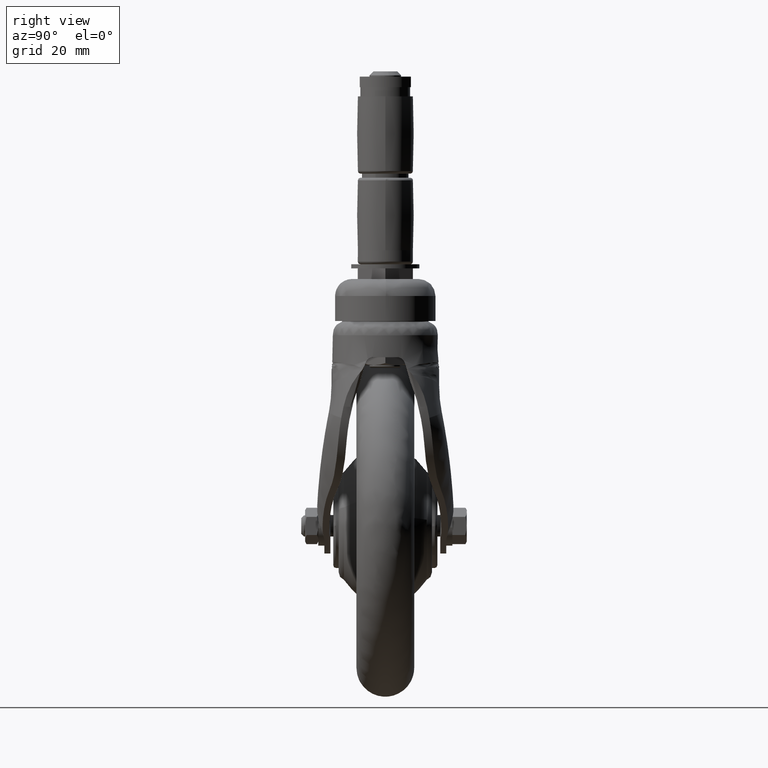
[diagram: clean part render]
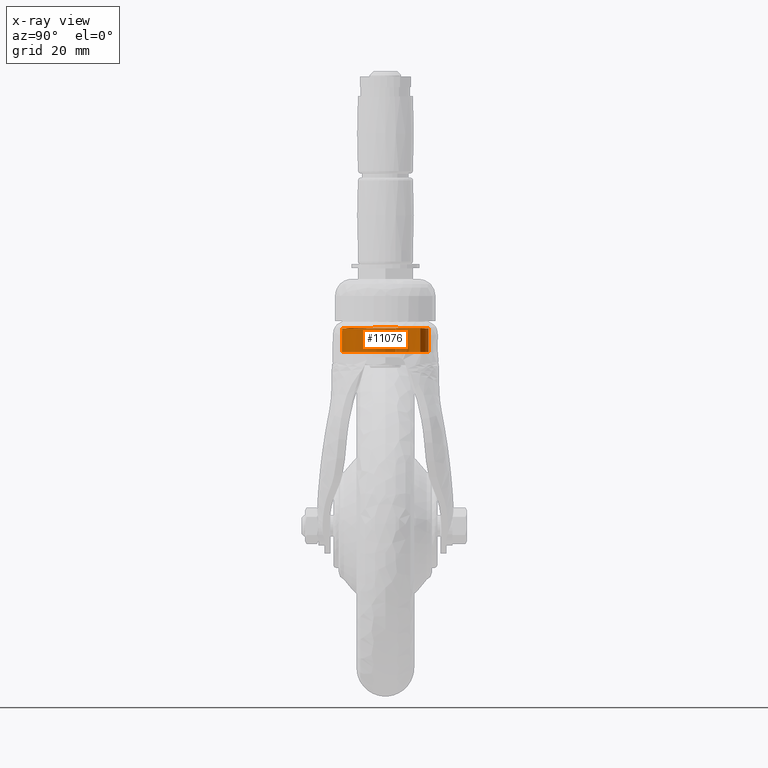
[diagram: x-ray — body ghosted, one internal face saturated and labeled with its STEP entity id]
A machine part, right view, then the same camera in x-ray: the body is ghosted and one INTERNAL B-rep face — a face not visible from any outside direction — is saturated and labeled: STEP entity #11076.
In plain terms, the highlighted face is a freeform B-spline surface patch.
Its self-contained STEP definition (entity closure, byte-faithful):
#10758=CARTESIAN_POINT('',(61.002456283382713,4.021367043484758,75.587504057680178));
#10759=CARTESIAN_POINT('',(62.907263208429306,-3.558540290696009,75.587504057680178));
#10760=CARTESIAN_POINT('',(58.249062442713033,-9.834243457891956,75.587504057680178));
#10761=CARTESIAN_POINT('',(48.414818984821075,-23.083305900604994,75.587504057680178));
#10762=CARTESIAN_POINT('',(35.165756542108042,-13.249062442713040,75.587504057680178));
#10763=CARTESIAN_POINT('',(21.916694099395016,-3.414818984821078,75.587504057680178));
#10764=CARTESIAN_POINT('',(31.750937557286971,9.834243457891956,75.587504057680178));
#10765=CARTESIAN_POINT('',(41.585181015178932,23.083305900604994,75.587504057680178));
#10766=CARTESIAN_POINT('',(54.834243457891958,13.249062442713040,75.587504057680178));
#10767=CARTESIAN_POINT('',(61.002456283382713,4.021367043484758,65.965312398551887));
#10768=CARTESIAN_POINT('',(62.907263208429306,-3.558540290696009,65.965312398551916));
#10769=CARTESIAN_POINT('',(58.249062442713033,-9.834243457891956,65.965312398551902));
#10770=CARTESIAN_POINT('',(48.414818984821075,-23.083305900604994,65.965312398551916));
#10771=CARTESIAN_POINT('',(35.165756542108042,-13.249062442713040,65.965312398551902));
#10772=CARTESIAN_POINT('',(21.916694099395016,-3.414818984821078,65.965312398551916));
#10773=CARTESIAN_POINT('',(31.750937557286971,9.834243457891956,65.965312398551902));
#10774=CARTESIAN_POINT('',(41.585181015178932,23.083305900604994,65.965312398551916));
#10775=CARTESIAN_POINT('',(54.834243457891958,13.249062442713040,65.965312398551902));
#10783=(BOUNDED_SURFACE()B_SPLINE_SURFACE(2,1,((#10758,#10767),(#10759,#10768),(#10760,#10769),(#10761,#10770),(#10762,#10771),(#10763,#10772),(#10764,#10773),(#10765,#10774),(#10766,#10775)),.UNSPECIFIED.,.F.,.F.,.U.)B_SPLINE_SURFACE_WITH_KNOTS((3,2,2,2,3),(2,2),(0.0,15.309333265309590,42.647428381933857,69.985523498558138,97.323618615182397),(0.0,9.622191659128287),.UNSPECIFIED.)GEOMETRIC_REPRESENTATION_ITEM()RATIONAL_B_SPLINE_SURFACE(((0.855662221768731,0.855662221768731),(0.835979797464467,0.835979797464467),(1.0,1.0),(0.707106781186548,0.707106781186548),(1.0,1.0),(0.707106781186548,0.707106781186548),(1.0,1.0),(0.707106781186548,0.707106781186548),(1.0,1.0)))REPRESENTATION_ITEM('')SURFACE());
#10784=CARTESIAN_POINT('',(61.500000000000000,0.0,66.199999999999989));
#10785=VERTEX_POINT('',#10784);
#10786=CARTESIAN_POINT('',(61.002456283335050,4.021367043674417,66.199999999999989));
#10787=VERTEX_POINT('',#10786);
#10788=CARTESIAN_POINT('',(61.500000000000000,0.0,66.199999999999989));
#10789=CARTESIAN_POINT('',(61.500000000000007,2.041462825007332,66.199999999999989));
#10790=CARTESIAN_POINT('',(61.002456283335057,4.021367043674418,66.199999999999989));
#10798=(BOUNDED_CURVE()B_SPLINE_CURVE(2,(#10788,#10789,#10790),.UNSPECIFIED.,.F.,.U.)B_SPLINE_CURVE_WITH_KNOTS((3,3),(0.0,0.041610900598623),.UNSPECIFIED.)CURVE()GEOMETRIC_REPRESENTATION_ITEM()RATIONAL_B_SPLINE_CURVE((1.0,0.951249797543770,0.918727913716092))REPRESENTATION_ITEM(''));
#10799=EDGE_CURVE('',#10785,#10787,#10798,.T.);
#10800=ORIENTED_EDGE('',*,*,#10799,.T.);
#10801=CARTESIAN_POINT('',(61.002416216861683,4.021349776961525,75.050108710114387));
#10802=VERTEX_POINT('',#10801);
#10803=CARTESIAN_POINT('',(61.002416216861683,4.021349776961525,75.050108710114387));
#10804=CARTESIAN_POINT('',(61.002456283335050,4.021367043674417,66.199999999999989));
#10805=QUASI_UNIFORM_CURVE('',1,(#10803,#10804),.UNSPECIFIED.,.F.,.U.);
#10806=EDGE_CURVE('',#10802,#10787,#10805,.T.);
#10807=ORIENTED_EDGE('',*,*,#10806,.F.);
#10808=CARTESIAN_POINT('',(50.071148555183420,-15.701383673722200,75.186873105777181));
#10809=VERTEX_POINT('',#10808);
#10810=CARTESIAN_POINT('',(61.002416216861683,4.021349776961525,75.050108710114387));
#10811=CARTESIAN_POINT('',(61.044515756381863,3.853817918214133,75.049430920742907));
#10812=CARTESIAN_POINT('',(61.083913804949241,3.685902906386505,75.048801995117458));
#10813=CARTESIAN_POINT('',(61.235492137583670,2.991224065684841,75.046429495899417));
#10814=CARTESIAN_POINT('',(61.324212996237563,2.461132848421926,75.045176593537434));
#10815=CARTESIAN_POINT('',(61.449766430510941,1.393590870206347,75.043717623391842));
#10816=CARTESIAN_POINT('',(61.486600753809157,0.856140356134697,75.043512020257438));
#10817=CARTESIAN_POINT('',(61.502094606792063,0.044326412716135,75.043591933249417));
#10818=CARTESIAN_POINT('',(61.500614403908912,-0.227431022610041,75.043676721026216));
#10819=CARTESIAN_POINT('',(61.484112125384598,-0.771990271989037,75.043865791611623));
#10820=CARTESIAN_POINT('',(61.469157040193068,-1.042935339335416,75.043983867786821));
#10821=CARTESIAN_POINT('',(61.404599887549047,-1.851850023465789,75.044563756473934));
#10822=CARTESIAN_POINT('',(61.335352717703792,-2.385908393827824,75.045266569133744));
#10823=CARTESIAN_POINT('',(61.145478789756602,-3.443794445078046,75.047746262993343));
#10824=CARTESIAN_POINT('',(61.024850665054473,-3.967621855414800,75.049522620437884));
#10825=CARTESIAN_POINT('',(60.805031553859607,-4.745621927645990,75.052957824422037));
#10826=CARTESIAN_POINT('',(60.725267574904123,-5.003662841648140,75.054227592112355));
#10827=CARTESIAN_POINT('',(60.595735151203449,-5.388755788796753,75.056280919909995));
#10828=CARTESIAN_POINT('',(60.550909162193911,-5.516791880894299,75.056989902642201));
#10829=CARTESIAN_POINT('',(60.457925513752613,-5.772200748495925,75.058447633476632));
#10830=CARTESIAN_POINT('',(60.409696453154822,-5.899750691170461,75.059197464292154));
#10831=CARTESIAN_POINT('',(60.161224120218812,-6.533051723962505,75.063000941463841));
#10832=CARTESIAN_POINT('',(59.939026485527492,-7.025849569992776,75.066106101924234));
#10833=CARTESIAN_POINT('',(59.449305257441807,-7.984653566457824,75.072484978210070));
#10834=CARTESIAN_POINT('',(59.181777940549857,-8.450656604859480,75.075872671943472));
#10835=CARTESIAN_POINT('',(58.601561539792087,-9.355962716366427,75.083481654170527));
#10836=CARTESIAN_POINT('',(58.288874833530798,-9.795267197302522,75.087702626885289));
#10837=CARTESIAN_POINT('',(57.869075396355463,-10.327287928897590,75.093476465446528));
#10838=CARTESIAN_POINT('',(57.783665083860740,-10.432834597703071,75.094654960930754));
#10839=CARTESIAN_POINT('',(57.609911712849438,-10.642194169690340,75.097054180714153));
#10840=CARTESIAN_POINT('',(57.521522879631220,-10.746051595710259,75.098275528257489));
#10841=CARTESIAN_POINT('',(57.253423831454370,-11.053291492963490,75.101971262073377));
#10842=CARTESIAN_POINT('',(57.070316703516660,-11.252920033954069,75.104484485460162));
#10843=CARTESIAN_POINT('',(56.508120675577587,-11.836508697578580,75.112049858364543));
#10844=CARTESIAN_POINT('',(56.116186904508922,-12.205208689082101,75.117028449743117));
#10845=CARTESIAN_POINT('',(55.298600826981541,-12.902549683548781,75.126809920275505));
#10846=CARTESIAN_POINT('',(54.872949003090312,-13.231189533802080,75.131730605231454));
#10847=CARTESIAN_POINT('',(54.208869224241226,-13.693725571804380,75.139488136466838));
#10848=CARTESIAN_POINT('',(53.983234719870367,-13.842824685386510,75.142133162559190));
#10849=CARTESIAN_POINT('',(53.523268672636782,-14.130687893973340,75.147554246125949));
#10850=CARTESIAN_POINT('',(53.288421891323331,-14.269720625813200,75.150336453484599));
#10851=CARTESIAN_POINT('',(52.576337351830887,-14.667789593329410,75.158786411544469));
#10852=CARTESIAN_POINT('',(52.090594248354222,-14.908598822597909,75.164580971145170));
#10853=CARTESIAN_POINT('',(51.097315115795553,-15.341640360417900,75.176014204510963));
#10854=CARTESIAN_POINT('',(50.589779522229080,-15.533873425407419,75.181549429766491));
#10855=CARTESIAN_POINT('',(50.071148555183420,-15.701383673722200,75.186873105777181));
#10856=B_SPLINE_CURVE_WITH_KNOTS('',3,(#10810,#10811,#10812,#10813,#10814,#10815,#10816,#10817,#10818,#10819,#10820,#10821,#10822,#10823,#10824,#10825,#10826,#10827,#10828,#10829,#10830,#10831,#10832,#10833,#10834,#10835,#10836,#10837,#10838,#10839,#10840,#10841,#10842,#10843,#10844,#10845,#10846,#10847,#10848,#10849,#10850,#10851,#10852,#10853,#10854,#10855),.UNSPECIFIED.,.F.,.U.,(4,2,2,2,2,2,2,2,2,2,2,2,2,2,2,2,2,2,2,2,2,2,4),(0.760629403587485,0.765625000000006,0.781250000000006,0.796875000000005,0.804687500000005,0.812500000000005,0.828125000000004,0.843750000000004,0.851562500000004,0.855468750000004,0.859375000000004,0.875000000000003,0.890625000000003,0.906250000000002,0.910156250000002,0.914062500000002,0.921875000000002,0.937500000000001,0.953125000000001,0.960937500000001,0.968750000000001,0.984375000000000,1.0),.UNSPECIFIED.);
#10857=EDGE_CURVE('',#10802,#10809,#10856,.T.);
#10858=ORIENTED_EDGE('',*,*,#10857,.T.);
#10859=CARTESIAN_POINT('',(28.604281801543880,1.852080548127024,75.357613298993712));
#10860=VERTEX_POINT('',#10859);
#10861=CARTESIAN_POINT('',(50.071148555183420,-15.701383673722200,75.186873105777181));
#10862=CARTESIAN_POINT('',(49.552569311654452,-15.868871662147690,75.192196097492328));
#10863=CARTESIAN_POINT('',(49.030023746156452,-16.009342891809460,75.197353717315067));
#10864=CARTESIAN_POINT('',(47.977223534605123,-16.238114132706560,75.207786156625161));
#10865=CARTESIAN_POINT('',(47.446967352053250,-16.326403838294851,75.213058532220302));
#10866=CARTESIAN_POINT('',(46.378838744230507,-16.451076430788369,75.223708626621672));
#10867=CARTESIAN_POINT('',(45.840966642435973,-16.487461575382980,75.229085552379843));
#10868=CARTESIAN_POINT('',(45.163752614621103,-16.499743540657200,75.235613879239310));
#10869=CARTESIAN_POINT('',(45.028065540121652,-16.500536114978772,75.236908932772280));
#10870=CARTESIAN_POINT('',(44.756197631108463,-16.498758737920340,75.239467463001830));
#10871=CARTESIAN_POINT('',(44.619839211391202,-16.496180804209491,75.240732522882212));
#10872=CARTESIAN_POINT('',(44.211963354365231,-16.483416199538620,75.244444853390519));
#10873=CARTESIAN_POINT('',(43.941315318408009,-16.468219015568710,75.246809271838515));
#10874=CARTESIAN_POINT('',(43.133106129235259,-16.402954316457379,75.253717505725220));
#10875=CARTESIAN_POINT('',(42.599271172099392,-16.333260220397701,75.258090754818582));
#10876=CARTESIAN_POINT('',(41.541378476711081,-16.142392070886181,75.266807528079710));
#10877=CARTESIAN_POINT('',(41.017320843858059,-16.021217397209679,75.271149578481825));
#10878=CARTESIAN_POINT('',(40.238653697038941,-15.800390982921240,75.277649676424360));
#10879=CARTESIAN_POINT('',(39.980336695550790,-15.720259913556291,75.279811089012767));
#10880=CARTESIAN_POINT('',(39.594750506266280,-15.590114243695901,75.283018729791721));
#10881=CARTESIAN_POINT('',(39.466536809692563,-15.545073389869581,75.284082003071177));
#10882=CARTESIAN_POINT('',(39.210746539939748,-15.451636297510939,75.286189882331186));
#10883=CARTESIAN_POINT('',(39.083392468819717,-15.403317124876880,75.287232623646958));
#10884=CARTESIAN_POINT('',(38.451530983784373,-15.154624064067860,75.292352586981181));
#10885=CARTESIAN_POINT('',(37.959555588737281,-14.932230692131670,75.296086220009457));
#10886=CARTESIAN_POINT('',(37.001852965696273,-14.441918372928180,75.302882460944730));
#10887=CARTESIAN_POINT('',(36.536128176607413,-14.173996401521730,75.306040772431032));
#10888=CARTESIAN_POINT('',(35.630926060189310,-13.592635637384390,75.312284403350645));
#10889=CARTESIAN_POINT('',(35.191446904865153,-13.279200008497700,75.315369238834492));
#10890=CARTESIAN_POINT('',(34.552483456248737,-12.773921183212639,75.319952386162043));
#10891=CARTESIAN_POINT('',(34.342546090890522,-12.599295633911520,75.321472132075073));
#10892=CARTESIAN_POINT('',(33.933982527996733,-12.242010681277019,75.324424240441928));
#10893=CARTESIAN_POINT('',(33.734824573621253,-12.058960933332109,75.325860306743607));
#10894=CARTESIAN_POINT('',(33.152456903294357,-11.496817605016069,75.329968035310102));
#10895=CARTESIAN_POINT('',(32.784317539597261,-11.104760312558730,75.332357309474531));
#10896=CARTESIAN_POINT('',(32.087736577893651,-10.286497926259470,75.336523704165884));
#10897=CARTESIAN_POINT('',(31.759294936143050,-9.860293339164386,75.338385400110141));
#10898=CARTESIAN_POINT('',(31.296883557885529,-9.194966933929594,75.341124867662785));
#10899=CARTESIAN_POINT('',(31.147797219893370,-8.968847172174252,75.342026304441220));
#10900=CARTESIAN_POINT('',(30.931888925716748,-8.623026396208759,75.343369691474493));
#10901=CARTESIAN_POINT('',(30.861110904326789,-8.506479567531011,75.343816463981554));
#10902=CARTESIAN_POINT('',(30.722741908013219,-8.272138621685617,75.344702210894894));
#10903=CARTESIAN_POINT('',(30.655145023152610,-8.154346942710337,75.345141195987466));
#10904=CARTESIAN_POINT('',(30.325011428189509,-7.562316639147823,75.347311429533192));
#10905=CARTESIAN_POINT('',(30.085968800028219,-7.078885172560121,75.348981840821153));
#10906=CARTESIAN_POINT('',(29.656745257802690,-6.092902627676760,75.351838963658480));
#10907=CARTESIAN_POINT('',(29.466566910872970,-5.590350324373718,75.352931762087493));
#10908=CARTESIAN_POINT('',(29.135239086208209,-4.566060530927552,75.354560780066706));
#10909=CARTESIAN_POINT('',(28.994085403107409,-4.044324862924958,75.355172232230885));
#10910=CARTESIAN_POINT('',(28.849289851935200,-3.379772603789204,75.355894440205759));
#10911=CARTESIAN_POINT('',(28.821906228520060,-3.246160328366563,75.356035995039093));
#10912=CARTESIAN_POINT('',(28.770617999029540,-2.979166327566055,75.356313456513746));
#10913=CARTESIAN_POINT('',(28.698783393888949,-2.578493771882136,75.356721409036624));
#10914=CARTESIAN_POINT('',(28.642070222053281,-2.177282671764317,75.357108972078805));
#10915=CARTESIAN_POINT('',(28.548494129060661,-1.374153506847260,75.357836194745303));
#10916=CARTESIAN_POINT('',(28.512530365432280,-0.837793109866663,75.358267868419702));
#10917=CARTESIAN_POINT('',(28.492956850763900,0.236792352867076,75.358649600164043));
#10918=CARTESIAN_POINT('',(28.509345803003530,0.775017396048501,75.358501986651845));
#10919=CARTESIAN_POINT('',(28.566744756871671,1.493383256822739,75.357950513896924));
#10920=CARTESIAN_POINT('',(28.584015867660209,1.672678571270227,75.357789834779751));
#10921=CARTESIAN_POINT('',(28.604281801543880,1.852080548127024,75.357613298993712));
#10922=B_SPLINE_CURVE_WITH_KNOTS('',3,(#10861,#10862,#10863,#10864,#10865,#10866,#10867,#10868,#10869,#10870,#10871,#10872,#10873,#10874,#10875,#10876,#10877,#10878,#10879,#10880,#10881,#10882,#10883,#10884,#10885,#10886,#10887,#10888,#10889,#10890,#10891,#10892,#10893,#10894,#10895,#10896,#10897,#10898,#10899,#10900,#10901,#10902,#10903,#10904,#10905,#10906,#10907,#10908,#10909,#10910,#10911,#10912,#10913,#10914,#10915,#10916,#10917,#10918,#10919,#10920,#10921),.UNSPECIFIED.,.F.,.U.,(4,2,2,2,2,2,2,2,2,2,2,2,2,2,2,2,2,2,2,2,2,2,2,2,2,2,1,2,2,2,4),(0.000001557555696,0.015625000000001,0.031250000000002,0.046875000000002,0.050781250000002,0.054687500000003,0.062500000000003,0.078125000000003,0.093750000000004,0.101562500000004,0.105468750000004,0.109375000000005,0.125000000000005,0.140625000000005,0.156250000000005,0.164062500000005,0.171875000000005,0.187500000000005,0.203125000000005,0.210937500000006,0.214843750000006,0.218750000000006,0.234375000000006,0.250000000000006,0.265625000000006,0.269531250000006,0.273437500000006,0.281250000000006,0.296875000000007,0.312500000000007,0.317692825824048),.UNSPECIFIED.);
#10923=EDGE_CURVE('',#10809,#10860,#10922,.T.);
#10924=ORIENTED_EDGE('',*,*,#10923,.T.);
#10925=CARTESIAN_POINT('',(39.924506904894258,15.699979931246220,75.280540674042356));
#10926=VERTEX_POINT('',#10925);
#10927=CARTESIAN_POINT('',(28.604281801543880,1.852080548127024,75.357613298993712));
#10928=CARTESIAN_POINT('',(28.614505505086829,1.942585173007317,75.357524320510507));
#10929=CARTESIAN_POINT('',(28.625491389753378,2.033116943428999,75.357431306613975));
#10930=CARTESIAN_POINT('',(28.654770473511501,2.258710590853589,75.357191867838793));
#10931=CARTESIAN_POINT('',(28.673975519437128,2.393560264398642,75.357041739238554));
#10932=CARTESIAN_POINT('',(28.715586779917832,2.661972108918964,75.356733292365334));
#10933=CARTESIAN_POINT('',(28.738010797226320,2.795674269429523,75.356574825158447));
#10934=CARTESIAN_POINT('',(28.858141560645318,3.461691569521176,75.355768543257938));
#10935=CARTESIAN_POINT('',(28.979821397297169,3.986544573609098,75.355093215391932));
#10936=CARTESIAN_POINT('',(29.273223154076081,5.020673826498609,75.353634871837471));
#10937=CARTESIAN_POINT('',(29.444946893291689,5.529949509385973,75.352852030442122));
#10938=CARTESIAN_POINT('',(29.740327113428240,6.282098035890482,75.351288548954969));
#10939=CARTESIAN_POINT('',(29.845097414967992,6.530849902297872,75.350695340003455));
#10940=CARTESIAN_POINT('',(30.067440533748229,7.024368242397642,75.349306171568571));
#10941=CARTESIAN_POINT('',(30.185100962760259,7.269306218102433,75.348521837415234));
#10942=CARTESIAN_POINT('',(30.557162447014360,7.996945190316184,75.346005294672267));
#10943=CARTESIAN_POINT('',(30.827108857487541,8.465757232847397,75.344146247470135));
#10944=CARTESIAN_POINT('',(31.409314221656839,9.371935036217737,75.340368329396043));
#10945=CARTESIAN_POINT('',(31.721577377275398,9.809297672471852,75.338449077509949));
#10946=CARTESIAN_POINT('',(32.388186856599830,10.652746792362430,75.334478376512934));
#10947=CARTESIAN_POINT('',(32.742531416345763,11.058834592813760,75.332428180813267));
#10948=CARTESIAN_POINT('',(33.212378733016507,11.546438624027189,75.329497519760423));
#10949=CARTESIAN_POINT('',(33.307697136786580,11.642956828570821,75.328891979966926));
#10950=CARTESIAN_POINT('',(33.501060079365743,11.833966982900771,75.327630697131241));
#10951=CARTESIAN_POINT('',(33.599245303297977,11.928588922021410,75.326972244650833));
#10952=CARTESIAN_POINT('',(33.896656411508388,12.208183746887400,75.324931250566053));
#10953=CARTESIAN_POINT('',(34.098746209834403,12.388933315781420,75.323487499769996));
#10954=CARTESIAN_POINT('',(34.716234452784967,12.914580075713040,75.319014569322334));
#10955=CARTESIAN_POINT('',(35.569415941528163,13.571249373916091,75.312695861837142));
#10956=CARTESIAN_POINT('',(36.481248407992979,14.141131871333060,75.306247746002470));
#10957=CARTESIAN_POINT('',(37.187350652393377,14.535652084074069,75.301297800657764));
#10958=CARTESIAN_POINT('',(37.426429180967588,14.661667279968571,75.299625762466761));
#10959=CARTESIAN_POINT('',(37.790704290112572,14.842318239690171,75.297047352964952));
#10960=CARTESIAN_POINT('',(37.913072655540070,14.901139262835891,75.296175945874708));
#10961=CARTESIAN_POINT('',(38.159716690283368,15.015958738918849,75.294400372005171));
#10962=CARTESIAN_POINT('',(38.284063135373280,15.071982571481410,75.293495642544215));
#10963=CARTESIAN_POINT('',(38.907132221422430,15.343486940361640,75.288889349573026));
#10964=CARTESIAN_POINT('',(39.412478784195002,15.534451282026410,75.284822580244580));
#10965=CARTESIAN_POINT('',(39.924506904894258,15.699979931246220,75.280540674042356));
#10966=B_SPLINE_CURVE_WITH_KNOTS('',3,(#10927,#10928,#10929,#10930,#10931,#10932,#10933,#10934,#10935,#10936,#10937,#10938,#10939,#10940,#10941,#10942,#10943,#10944,#10945,#10946,#10947,#10948,#10949,#10950,#10951,#10952,#10953,#10954,#10955,#10956,#10957,#10958,#10959,#10960,#10961,#10962,#10963,#10964,#10965),.UNSPECIFIED.,.F.,.U.,(4,2,2,2,2,2,2,2,2,2,2,2,2,2,1,2,2,2,2,4),(0.317692825824048,0.320312500000007,0.324218750000007,0.328125000000007,0.343750000000007,0.359375000000007,0.367187500000007,0.375000000000008,0.390625000000008,0.406250000000008,0.421875000000008,0.425781250000008,0.429687500000008,0.437500000000008,0.453125000000008,0.468750000000009,0.476562500000009,0.480468750000009,0.484375000000009,0.500000000000009),.UNSPECIFIED.);
#10967=EDGE_CURVE('',#10860,#10926,#10966,.T.);
#10968=ORIENTED_EDGE('',*,*,#10967,.T.);
#10969=CARTESIAN_POINT('',(54.834238692481378,13.249049063386160,75.131954783755901));
#10970=VERTEX_POINT('',#10969);
#10971=CARTESIAN_POINT('',(39.924506904894258,15.699979931246220,75.280540674042356));
#10972=CARTESIAN_POINT('',(40.436535468360219,15.865508904483120,75.276258441788585));
#10973=CARTESIAN_POINT('',(40.955246916761553,16.005598174219610,75.271810140346417));
#10974=CARTESIAN_POINT('',(42.006010901650242,16.235000734304379,75.262883155367305));
#10975=CARTESIAN_POINT('',(42.538062660091462,16.324317037451429,75.258406113144346));
#10976=CARTESIAN_POINT('',(43.211691471722517,16.403365827377719,75.252736183230041));
#10977=CARTESIAN_POINT('',(43.346846433469587,16.417541941113370,75.251597476092442));
#10978=CARTESIAN_POINT('',(43.618024543811742,16.442589446525279,75.249304856552314));
#10979=CARTESIAN_POINT('',(43.753789472273361,16.453433244132100,75.248153106922814));
#10980=CARTESIAN_POINT('',(44.160267020446902,16.480858139709401,75.244682041262777));
#10981=CARTESIAN_POINT('',(44.430707470829368,16.492387668439470,75.242343090788324));
#10982=CARTESIAN_POINT('',(45.240423564972680,16.507082312138881,75.235135960795674));
#10983=CARTESIAN_POINT('',(45.778096714375422,16.490400498886569,75.229970878373734));
#10984=CARTESIAN_POINT('',(46.849233495997410,16.404849100483620,75.219302837715873));
#10985=CARTESIAN_POINT('',(47.382697585001530,16.335979416108341,75.213848150605543));
#10986=CARTESIAN_POINT('',(48.179694714314202,16.192975170995162,75.205742922107802));
#10987=CARTESIAN_POINT('',(48.444826283094088,16.138678734542690,75.203051092280944));
#10988=CARTESIAN_POINT('',(48.974001710780932,16.016587458551140,75.197692688937224));
#10989=CARTESIAN_POINT('',(49.238469382389340,15.948637253606440,75.195021913360804));
#10990=CARTESIAN_POINT('',(50.021673054604442,15.726643537329670,75.187099555394354));
#10991=CARTESIAN_POINT('',(50.532863482758167,15.553989562409120,75.181924626122878));
#10992=CARTESIAN_POINT('',(51.533939135744390,15.160697328421451,75.171264180240300));
#10993=CARTESIAN_POINT('',(52.023821879101192,14.940056696078249,75.165650426072474));
#10994=CARTESIAN_POINT('',(52.982247673827743,14.450709330644800,75.154276887663727));
#10995=CARTESIAN_POINT('',(53.450792881217069,14.182006112154040,75.148570609180695));
#10996=CARTESIAN_POINT('',(54.022727413521046,13.815154801823070,75.141671557359885));
#10997=CARTESIAN_POINT('',(54.136582816138720,13.740123580791220,75.140300583654223));
#10998=CARTESIAN_POINT('',(54.361925260685020,13.587585016666120,75.137594171442444));
#10999=CARTESIAN_POINT('',(54.558466633280709,13.450959823479000,75.135239628437645));
#11000=CARTESIAN_POINT('',(54.751420026060828,13.310522226615319,75.132940071193374));
#11001=CARTESIAN_POINT('',(54.834238692481378,13.249049063386160,75.131954783755901));
#11002=B_SPLINE_CURVE_WITH_KNOTS('',3,(#10971,#10972,#10973,#10974,#10975,#10976,#10977,#10978,#10979,#10980,#10981,#10982,#10983,#10984,#10985,#10986,#10987,#10988,#10989,#10990,#10991,#10992,#10993,#10994,#10995,#10996,#10997,#10998,#10999,#11000,#11001),.UNSPECIFIED.,.F.,.U.,(4,2,2,2,2,2,2,2,2,2,2,2,2,2,1,4),(0.500000000000009,0.515625000000008,0.531250000000008,0.535156250000008,0.539062500000008,0.546875000000008,0.562500000000008,0.578125000000008,0.585937500000008,0.593750000000008,0.609375000000008,0.625000000000009,0.640625000000009,0.644531250000009,0.648437500000009,0.651416638177247),.UNSPECIFIED.);
#11003=EDGE_CURVE('',#10926,#10970,#11002,.T.);
#11004=ORIENTED_EDGE('',*,*,#11003,.T.);
#11005=CARTESIAN_POINT('',(54.834236505286839,13.249067603345100,66.200000000174995));
#11006=VERTEX_POINT('',#11005);
#11007=CARTESIAN_POINT('',(54.834238692481378,13.249049063386160,75.131954783755901));
#11008=CARTESIAN_POINT('',(54.834236505286839,13.249067603345100,66.200000000174995));
#11009=QUASI_UNIFORM_CURVE('',1,(#11007,#11008),.UNSPECIFIED.,.F.,.U.);
#11010=EDGE_CURVE('',#10970,#11006,#11009,.T.);
#11011=ORIENTED_EDGE('',*,*,#11010,.T.);
#11012=CARTESIAN_POINT('',(28.500000000000000,0.0,66.199999999999989));
#11013=VERTEX_POINT('',#11012);
#11014=CARTESIAN_POINT('',(54.834236505286839,13.249067603345102,66.200000000174995));
#11015=CARTESIAN_POINT('',(50.454453379876654,16.500000000000004,66.199999999999989));
#11016=CARTESIAN_POINT('',(45.0,16.500000000000000,66.199999999999989));
#11017=CARTESIAN_POINT('',(28.499999999999993,16.499999999999993,66.199999999999989));
#11018=CARTESIAN_POINT('',(28.500000000000000,0.0,66.199999999999989));
#11026=(BOUNDED_CURVE()B_SPLINE_CURVE(2,(#11014,#11015,#11016,#11017,#11018),.UNSPECIFIED.,.F.,.U.)B_SPLINE_CURVE_WITH_KNOTS((3,2,3),(0.147200876056921,0.250000000000000,0.500000000000000),.UNSPECIFIED.)CURVE()GEOMETRIC_REPRESENTATION_ITEM()RATIONAL_B_SPLINE_CURVE((0.858172938971867,0.879563334788434,1.0,0.707106781186548,1.0))REPRESENTATION_ITEM(''));
#11027=EDGE_CURVE('',#11006,#11013,#11026,.T.);
#11028=ORIENTED_EDGE('',*,*,#11027,.T.);
#11029=CARTESIAN_POINT('',(34.166335030076027,-12.445147782145551,66.199999999994063));
#11030=VERTEX_POINT('',#11029);
#11031=CARTESIAN_POINT('',(28.500000000000000,0.0,66.199999999999989));
#11032=CARTESIAN_POINT('',(28.499999999999993,-7.512528547903988,66.199999999999989));
#11033=CARTESIAN_POINT('',(34.166335030076020,-12.445147782145543,66.199999999994063));
#11041=(BOUNDED_CURVE()B_SPLINE_CURVE(2,(#11031,#11032,#11033),.UNSPECIFIED.,.F.,.U.)B_SPLINE_CURVE_WITH_KNOTS((3,3),(0.500000000000000,0.635432807299123),.UNSPECIFIED.)CURVE()GEOMETRIC_REPRESENTATION_ITEM()RATIONAL_B_SPLINE_CURVE((1.0,0.841330596548871,0.854573535032651))REPRESENTATION_ITEM(''));
#11042=EDGE_CURVE('',#11013,#11030,#11041,.T.);
#11043=ORIENTED_EDGE('',*,*,#11042,.T.);
#11044=CARTESIAN_POINT('',(58.044379498990963,-10.104165650181329,66.199999999996294));
#11045=VERTEX_POINT('',#11044);
#11046=CARTESIAN_POINT('',(34.166335030076027,-12.445147782145542,66.199999999994077));
#11047=CARTESIAN_POINT('',(38.824337213644746,-16.500000000000000,66.199999999999974));
#11048=CARTESIAN_POINT('',(45.0,-16.500000000000000,66.199999999999989));
#11049=CARTESIAN_POINT('',(53.090171462747634,-16.499999999999996,66.199999999999989));
#11050=CARTESIAN_POINT('',(58.044379498990963,-10.104165650181328,66.199999999996280));
#11058=(BOUNDED_CURVE()B_SPLINE_CURVE(2,(#11046,#11047,#11048,#11049,#11050),.UNSPECIFIED.,.F.,.U.)B_SPLINE_CURVE_WITH_KNOTS((3,2,3),(0.635432807299123,0.750000000000000,0.894088413033274),.UNSPECIFIED.)CURVE()GEOMETRIC_REPRESENTATION_ITEM()RATIONAL_B_SPLINE_CURVE((0.854573535032651,0.865776184637676,1.0,0.831189923651849,0.856968455343945))REPRESENTATION_ITEM(''));
#11059=EDGE_CURVE('',#11030,#11045,#11058,.T.);
#11060=ORIENTED_EDGE('',*,*,#11059,.T.);
#11061=CARTESIAN_POINT('',(58.044379498990970,-10.104165650181328,66.199999999996294));
#11062=CARTESIAN_POINT('',(61.500000000000007,-5.642993220884210,66.200000000000003));
#11063=CARTESIAN_POINT('',(61.500000000000000,0.0,66.199999999999989));
#11071=(BOUNDED_CURVE()B_SPLINE_CURVE(2,(#11061,#11062,#11063),.UNSPECIFIED.,.F.,.U.)B_SPLINE_CURVE_WITH_KNOTS((3,3),(0.894088413033273,1.0),.UNSPECIFIED.)CURVE()GEOMETRIC_REPRESENTATION_ITEM()RATIONAL_B_SPLINE_CURVE((0.856968455343945,0.875916857534698,1.0))REPRESENTATION_ITEM(''));
#11072=EDGE_CURVE('',#11045,#10785,#11071,.T.);
#11073=ORIENTED_EDGE('',*,*,#11072,.T.);
#11074=EDGE_LOOP('',(#10800,#10807,#10858,#10924,#10968,#11004,#11011,#11028,#11043,#11060,#11073));
#11075=FACE_OUTER_BOUND('',#11074,.T.);
#11076=ADVANCED_FACE('',(#11075),#10783,.T.);